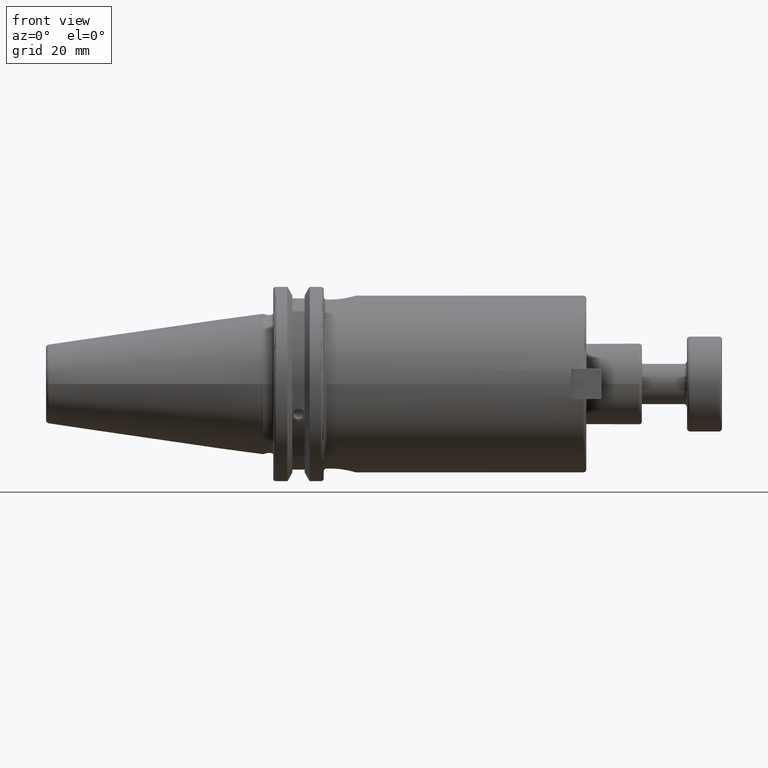
[diagram: clean part render]
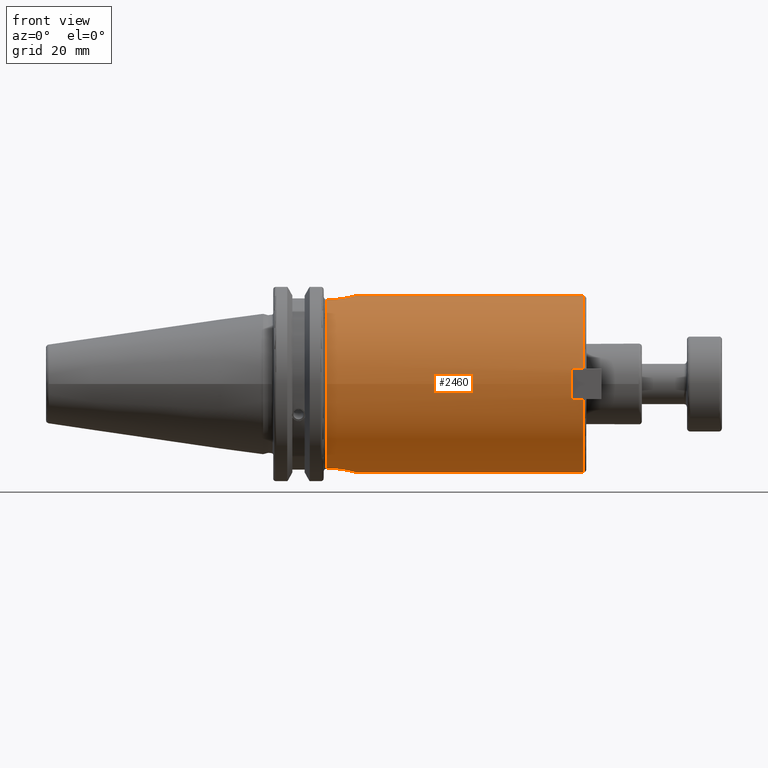
[diagram: same view with one face highlighted and labeled with its STEP entity id]
A machine part, front view. The second image highlights one B-rep face of the part: STEP entity #2460.
In plain terms, the highlighted cylindrical surface (bore or boss wall) has radius 27.79 mm, axis along (1, 0, 0).
Its self-contained STEP definition (entity closure, byte-faithful):
#112=CYLINDRICAL_SURFACE('',#2716,27.79);
#195=CIRCLE('',#2706,27.79);
#197=CIRCLE('',#2708,27.79);
#201=CIRCLE('',#2717,27.79);
#202=CIRCLE('',#2718,27.79);
#203=CIRCLE('',#2719,27.79);
#204=CIRCLE('',#2720,27.79);
#205=CIRCLE('',#2721,27.79);
#206=CIRCLE('',#2722,27.79);
#331=FACE_OUTER_BOUND('',#479,.T.);
#479=EDGE_LOOP('',(#1661,#1662,#1663,#1664,#1665,#1666,#1667,#1668,#1669,
#1670,#1671,#1672,#1673,#1674,#1675,#1676,#1677,#1678,#1679,#1680));
#646=LINE('',#3805,#810);
#651=LINE('',#3840,#815);
#653=LINE('',#3844,#817);
#654=LINE('',#3848,#818);
#655=LINE('',#3869,#819);
#656=LINE('',#3873,#820);
#657=LINE('',#3894,#821);
#658=LINE('',#3899,#822);
#659=LINE('',#3903,#823);
#810=VECTOR('',#3017,10.);
#815=VECTOR('',#3044,10.);
#817=VECTOR('',#3048,27.79);
#818=VECTOR('',#3051,10.);
#819=VECTOR('',#3052,10.);
#820=VECTOR('',#3055,10.);
#821=VECTOR('',#3056,10.);
#822=VECTOR('',#3061,10.);
#823=VECTOR('',#3064,10.);
#973=B_SPLINE_CURVE_WITH_KNOTS('',3,(#3850,#3851,#3852,#3853,#3854,#3855,
#3856,#3857,#3858,#3859,#3860,#3861,#3862,#3863,#3864,#3865,#3866,#3867),
 .UNSPECIFIED.,.F.,.F.,(4,2,2,2,2,2,2,2,4),(-2.48404790879586,-2.17349897513637,
-1.86295004147687,-1.5524869979374,-1.24202395439793,-0.931560910858458,
-0.621097867318987,-0.310548933659494,0.),.UNSPECIFIED.);
#974=B_SPLINE_CURVE_WITH_KNOTS('',3,(#3875,#3876,#3877,#3878,#3879,#3880,
#3881,#3882,#3883,#3884,#3885,#3886,#3887,#3888,#3889,#3890,#3891,#3892),
 .UNSPECIFIED.,.F.,.F.,(4,2,2,2,2,2,2,2,4),(-2.48404790879586,-2.17349897513637,
-1.86295004147687,-1.5524869979374,-1.24202395439793,-0.931560910858459,
-0.621097867318988,-0.310548933659494,0.),.UNSPECIFIED.);
#1012=VERTEX_POINT('',#3788);
#1015=VERTEX_POINT('',#3803);
#1016=VERTEX_POINT('',#3807);
#1018=VERTEX_POINT('',#3811);
#1023=VERTEX_POINT('',#3828);
#1025=VERTEX_POINT('',#3843);
#1026=VERTEX_POINT('',#3845);
#1027=VERTEX_POINT('',#3847);
#1028=VERTEX_POINT('',#3849);
#1029=VERTEX_POINT('',#3868);
#1030=VERTEX_POINT('',#3870);
#1031=VERTEX_POINT('',#3872);
#1032=VERTEX_POINT('',#3874);
#1033=VERTEX_POINT('',#3893);
#1034=VERTEX_POINT('',#3896);
#1035=VERTEX_POINT('',#3898);
#1036=VERTEX_POINT('',#3900);
#1037=VERTEX_POINT('',#3902);
#1263=EDGE_CURVE('',#1012,#1015,#646,.T.);
#1264=EDGE_CURVE('',#1015,#1016,#195,.T.);
#1267=EDGE_CURVE('',#1016,#1018,#197,.T.);
#1275=EDGE_CURVE('',#1018,#1023,#651,.T.);
#1277=EDGE_CURVE('',#1016,#1025,#653,.T.);
#1278=EDGE_CURVE('',#1026,#1025,#201,.T.);
#1279=EDGE_CURVE('',#1026,#1027,#654,.T.);
#1280=EDGE_CURVE('',#1027,#1028,#973,.T.);
#1281=EDGE_CURVE('',#1028,#1029,#655,.T.);
#1282=EDGE_CURVE('',#1030,#1029,#202,.T.);
#1283=EDGE_CURVE('',#1030,#1031,#656,.T.);
#1284=EDGE_CURVE('',#1031,#1032,#974,.T.);
#1285=EDGE_CURVE('',#1032,#1033,#657,.T.);
#1286=EDGE_CURVE('',#1025,#1033,#203,.T.);
#1287=EDGE_CURVE('',#1034,#1023,#204,.T.);
#1288=EDGE_CURVE('',#1034,#1035,#658,.T.);
#1289=EDGE_CURVE('',#1035,#1036,#205,.T.);
#1290=EDGE_CURVE('',#1036,#1037,#659,.T.);
#1291=EDGE_CURVE('',#1012,#1037,#206,.T.);
#1661=ORIENTED_EDGE('',*,*,#1263,.T.);
#1662=ORIENTED_EDGE('',*,*,#1264,.T.);
#1663=ORIENTED_EDGE('',*,*,#1277,.T.);
#1664=ORIENTED_EDGE('',*,*,#1278,.F.);
#1665=ORIENTED_EDGE('',*,*,#1279,.T.);
#1666=ORIENTED_EDGE('',*,*,#1280,.T.);
#1667=ORIENTED_EDGE('',*,*,#1281,.T.);
#1668=ORIENTED_EDGE('',*,*,#1282,.F.);
#1669=ORIENTED_EDGE('',*,*,#1283,.T.);
#1670=ORIENTED_EDGE('',*,*,#1284,.T.);
#1671=ORIENTED_EDGE('',*,*,#1285,.T.);
#1672=ORIENTED_EDGE('',*,*,#1286,.F.);
#1673=ORIENTED_EDGE('',*,*,#1277,.F.);
#1674=ORIENTED_EDGE('',*,*,#1267,.T.);
#1675=ORIENTED_EDGE('',*,*,#1275,.T.);
#1676=ORIENTED_EDGE('',*,*,#1287,.F.);
#1677=ORIENTED_EDGE('',*,*,#1288,.T.);
#1678=ORIENTED_EDGE('',*,*,#1289,.T.);
#1679=ORIENTED_EDGE('',*,*,#1290,.T.);
#1680=ORIENTED_EDGE('',*,*,#1291,.F.);
#2460=ADVANCED_FACE('',(#331),#112,.T.);
#2706=AXIS2_PLACEMENT_3D('',#3808,#3020,#3021);
#2708=AXIS2_PLACEMENT_3D('',#3813,#3025,#3026);
#2716=AXIS2_PLACEMENT_3D('',#3842,#3046,#3047);
#2717=AXIS2_PLACEMENT_3D('',#3846,#3049,#3050);
#2718=AXIS2_PLACEMENT_3D('',#3871,#3053,#3054);
#2719=AXIS2_PLACEMENT_3D('',#3895,#3057,#3058);
#2720=AXIS2_PLACEMENT_3D('',#3897,#3059,#3060);
#2721=AXIS2_PLACEMENT_3D('',#3901,#3062,#3063);
#2722=AXIS2_PLACEMENT_3D('',#3904,#3065,#3066);
#3017=DIRECTION('',(-1.,0.,0.));
#3020=DIRECTION('center_axis',(-1.,0.,0.));
#3021=DIRECTION('ref_axis',(0.,1.,0.));
#3025=DIRECTION('center_axis',(-1.,0.,0.));
#3026=DIRECTION('ref_axis',(0.,1.,0.));
#3044=DIRECTION('',(1.,0.,0.));
#3046=DIRECTION('center_axis',(1.,0.,0.));
#3047=DIRECTION('ref_axis',(0.,1.,0.));
#3048=DIRECTION('',(-1.,0.,0.));
#3049=DIRECTION('center_axis',(-1.,0.,0.));
#3050=DIRECTION('ref_axis',(0.,-1.,-1.22464679914735E-16));
#3051=DIRECTION('',(1.,0.,0.));
#3052=DIRECTION('',(-1.,0.,0.));
#3053=DIRECTION('center_axis',(-1.,0.,0.));
#3054=DIRECTION('ref_axis',(0.,1.,0.));
#3055=DIRECTION('',(1.,0.,0.));
#3056=DIRECTION('',(-1.,0.,0.));
#3057=DIRECTION('center_axis',(-1.,0.,0.));
#3058=DIRECTION('ref_axis',(0.,-1.,-1.22464679914735E-16));
#3059=DIRECTION('center_axis',(1.,0.,0.));
#3060=DIRECTION('ref_axis',(0.,-1.,1.83697019872103E-16));
#3061=DIRECTION('',(-1.,0.,0.));
#3062=DIRECTION('center_axis',(-1.,0.,0.));
#3063=DIRECTION('ref_axis',(0.,1.,0.));
#3064=DIRECTION('',(1.,0.,0.));
#3065=DIRECTION('center_axis',(1.,0.,0.));
#3066=DIRECTION('ref_axis',(0.,-1.,1.83697019872103E-16));
#3788=CARTESIAN_POINT('',(100.6,-27.3793078802222,-4.76));
#3803=CARTESIAN_POINT('',(96.83,-27.3793078802222,-4.76));
#3805=CARTESIAN_POINT('',(60.325,-27.3793078802222,-4.76));
#3807=CARTESIAN_POINT('',(96.83,-27.79,-3.40329345483049E-15));
#3808=CARTESIAN_POINT('Origin',(96.83,0.,0.));
#3811=CARTESIAN_POINT('',(96.83,-27.3793078802222,4.76));
#3813=CARTESIAN_POINT('Origin',(96.83,0.,0.));
#3828=CARTESIAN_POINT('',(100.6,-27.3793078802222,4.76));
#3840=CARTESIAN_POINT('',(60.325,-27.3793078802222,4.76));
#3842=CARTESIAN_POINT('Origin',(60.325,0.,0.));
#3843=CARTESIAN_POINT('',(20.05,-27.79,-3.40329345483049E-15));
#3844=CARTESIAN_POINT('',(60.325,-27.79,-3.40329345483049E-15));
#3845=CARTESIAN_POINT('',(20.05,-8.18999999999999,-26.5557526724437));
#3846=CARTESIAN_POINT('Origin',(20.05,0.,0.));
#3847=CARTESIAN_POINT('',(20.985,-8.19,-26.5557526724437));
#3848=CARTESIAN_POINT('',(60.325,-8.18999999999999,-26.5557526724437));
#3849=CARTESIAN_POINT('',(20.985,8.19000000000002,-26.5557526724437));
#3850=CARTESIAN_POINT('Ctrl Pts',(20.985,-8.19,-26.5557526724437));
#3851=CARTESIAN_POINT('Ctrl Pts',(22.0201631121983,-8.19,-26.5557526724437));
#3852=CARTESIAN_POINT('Ctrl Pts',(23.1197923487993,-7.98185829609769,-26.6226123097308));
#3853=CARTESIAN_POINT('Ctrl Pts',(25.1356211014446,-7.14421117880254,-26.8595194937095));
#3854=CARTESIAN_POINT('Ctrl Pts',(26.0524024884575,-6.51500658737815,-27.0256630340214));
#3855=CARTESIAN_POINT('Ctrl Pts',(27.4998064017128,-5.06760267412283,-27.3340606843464));
#3856=CARTESIAN_POINT('Ctrl Pts',(28.1291661371732,-4.15073970749414,-27.4969964420021));
#3857=CARTESIAN_POINT('Ctrl Pts',(28.9669276402387,-2.13461525757678,-27.7264651749869));
#3858=CARTESIAN_POINT('Ctrl Pts',(29.175,-1.03487681179824,-27.79));
#3859=CARTESIAN_POINT('Ctrl Pts',(29.175,1.03487681179824,-27.79));
#3860=CARTESIAN_POINT('Ctrl Pts',(28.9669276402387,2.13461525757678,-27.7264651749869));
#3861=CARTESIAN_POINT('Ctrl Pts',(28.1291661371732,4.15073970749414,-27.4969964420021));
#3862=CARTESIAN_POINT('Ctrl Pts',(27.4998064017128,5.06760267412283,-27.3340606843464));
#3863=CARTESIAN_POINT('Ctrl Pts',(26.0524024884575,6.51500658737815,-27.0256630340214));
#3864=CARTESIAN_POINT('Ctrl Pts',(25.1356211014446,7.14421117880255,-26.8595194937095));
#3865=CARTESIAN_POINT('Ctrl Pts',(23.1197923487993,7.98185829609769,-26.6226123097308));
#3866=CARTESIAN_POINT('Ctrl Pts',(22.0201631121983,8.19,-26.5557526724437));
#3867=CARTESIAN_POINT('Ctrl Pts',(20.985,8.19,-26.5557526724437));
#3868=CARTESIAN_POINT('',(20.05,8.19000000000003,-26.5557526724437));
#3869=CARTESIAN_POINT('',(60.325,8.19000000000003,-26.5557526724437));
#3870=CARTESIAN_POINT('',(20.05,8.19000000000001,26.5557526724437));
#3871=CARTESIAN_POINT('Origin',(20.05,0.,0.));
#3872=CARTESIAN_POINT('',(20.985,8.19,26.5557526724437));
#3873=CARTESIAN_POINT('',(60.325,8.19000000000001,26.5557526724437));
#3874=CARTESIAN_POINT('',(20.985,-8.19000000000003,26.5557526724437));
#3875=CARTESIAN_POINT('Ctrl Pts',(20.985,8.19000000000002,26.5557526724437));
#3876=CARTESIAN_POINT('Ctrl Pts',(22.0201631121983,8.19000000000002,26.5557526724437));
#3877=CARTESIAN_POINT('Ctrl Pts',(23.1197923487993,7.98185829609771,26.6226123097308));
#3878=CARTESIAN_POINT('Ctrl Pts',(25.1356211014446,7.14421117880257,26.8595194937095));
#3879=CARTESIAN_POINT('Ctrl Pts',(26.0524024884575,6.51500658737817,27.0256630340214));
#3880=CARTESIAN_POINT('Ctrl Pts',(27.4998064017128,5.06760267412285,27.3340606843464));
#3881=CARTESIAN_POINT('Ctrl Pts',(28.1291661371732,4.15073970749416,27.4969964420021));
#3882=CARTESIAN_POINT('Ctrl Pts',(28.9669276402386,2.1346152575768,27.7264651749869));
#3883=CARTESIAN_POINT('Ctrl Pts',(29.175,1.03487681179826,27.79));
#3884=CARTESIAN_POINT('Ctrl Pts',(29.175,-1.03487681179822,27.79));
#3885=CARTESIAN_POINT('Ctrl Pts',(28.9669276402386,-2.13461525757676,27.7264651749869));
#3886=CARTESIAN_POINT('Ctrl Pts',(28.1291661371732,-4.15073970749412,27.4969964420021));
#3887=CARTESIAN_POINT('Ctrl Pts',(27.4998064017128,-5.06760267412281,27.3340606843464));
#3888=CARTESIAN_POINT('Ctrl Pts',(26.0524024884575,-6.51500658737814,27.0256630340214));
#3889=CARTESIAN_POINT('Ctrl Pts',(25.1356211014446,-7.14421117880254,26.8595194937095));
#3890=CARTESIAN_POINT('Ctrl Pts',(23.1197923487993,-7.98185829609768,26.6226123097308));
#3891=CARTESIAN_POINT('Ctrl Pts',(22.0201631121983,-8.18999999999999,26.5557526724437));
#3892=CARTESIAN_POINT('Ctrl Pts',(20.985,-8.18999999999999,26.5557526724437));
#3893=CARTESIAN_POINT('',(20.05,-8.19000000000004,26.5557526724437));
#3894=CARTESIAN_POINT('',(60.325,-8.19000000000004,26.5557526724437));
#3895=CARTESIAN_POINT('Origin',(20.05,0.,0.));
#3896=CARTESIAN_POINT('',(100.6,27.3793078802222,4.76));
#3897=CARTESIAN_POINT('Origin',(100.6,0.,0.));
#3898=CARTESIAN_POINT('',(96.83,27.3793078802222,4.76));
#3899=CARTESIAN_POINT('',(60.325,27.3793078802222,4.76));
#3900=CARTESIAN_POINT('',(96.83,27.3793078802222,-4.76));
#3901=CARTESIAN_POINT('Origin',(96.83,0.,0.));
#3902=CARTESIAN_POINT('',(100.6,27.3793078802222,-4.76));
#3903=CARTESIAN_POINT('',(60.325,27.3793078802222,-4.76));
#3904=CARTESIAN_POINT('Origin',(100.6,0.,0.));